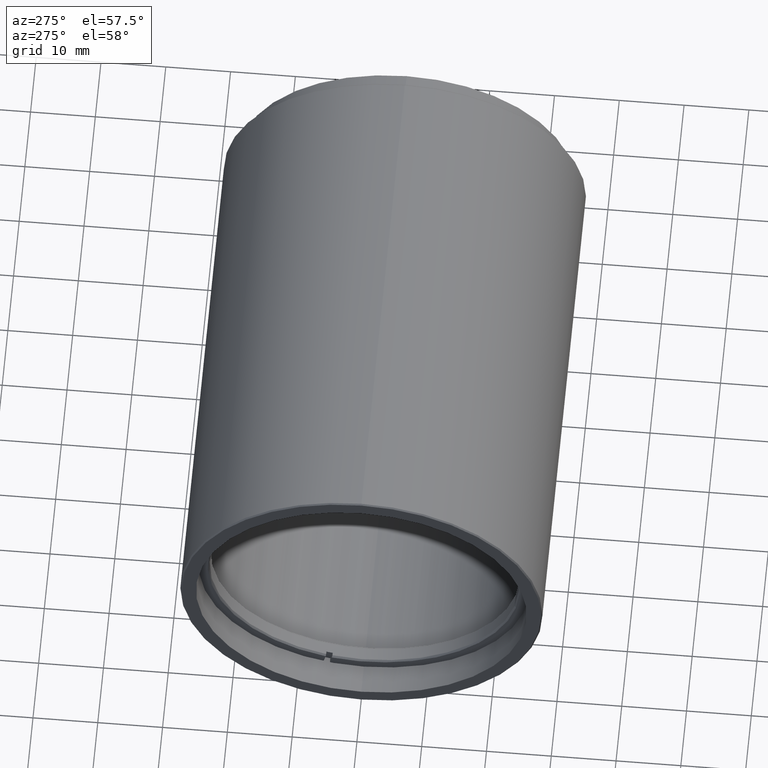
[diagram: clean part render]
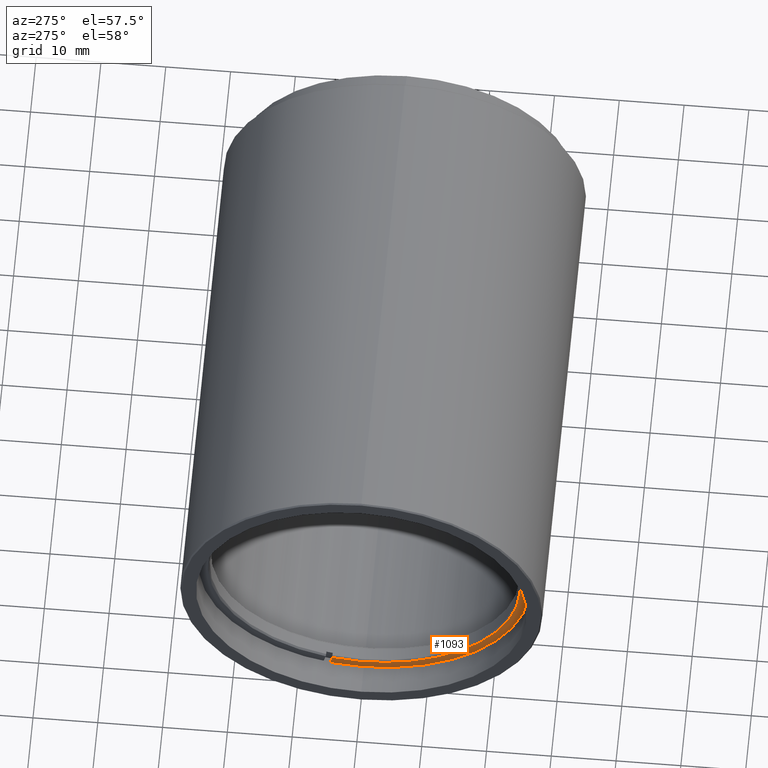
[diagram: same view with one face highlighted and labeled with its STEP entity id]
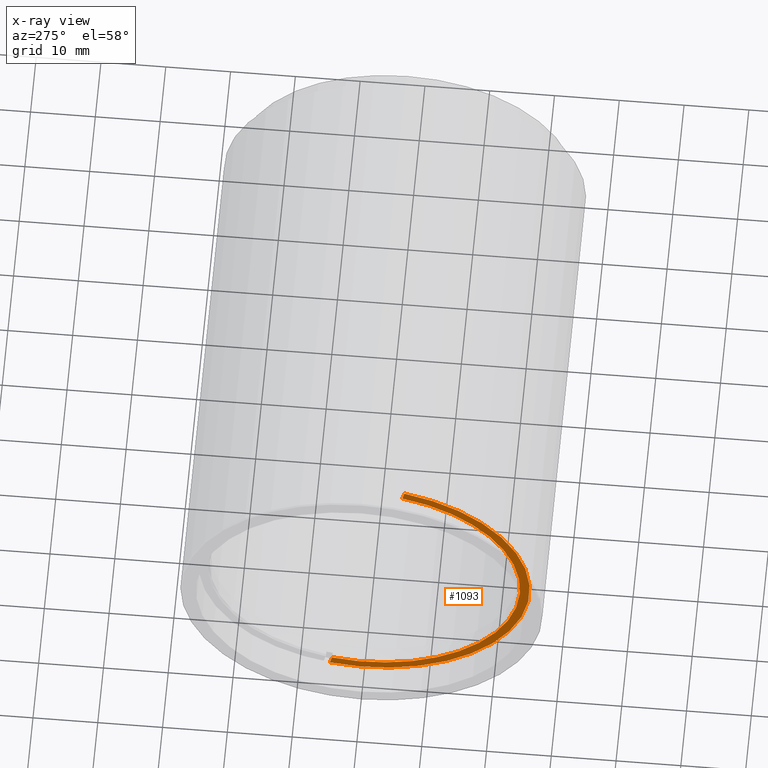
[diagram: x-ray of the same camera — body ghosted, the highlighted face saturated]
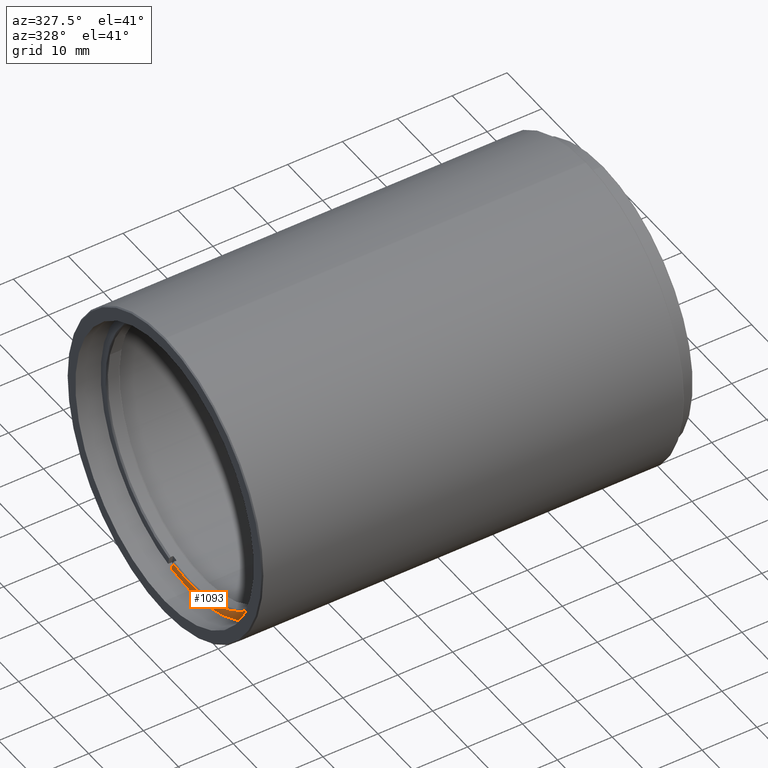
[diagram: same view with one face highlighted and labeled with its STEP entity id]
A machine part, auxiliary view. The second image highlights one B-rep face of the part: STEP entity #1093.
The next image is the same camera in x-ray: the body ghosted, the highlighted face saturated — about 0% of this face is hidden behind the body in this view.
A second angle (auxiliary view) of the same face is appended — the face is thin or edge-on in the first view.
In plain terms, the highlighted planar face has unit normal (-1, -0, 0).
Its self-contained STEP definition (entity closure, byte-faithful):
#13 = VERTEX_POINT ( 'NONE', #673 ) ;
#84 = EDGE_CURVE ( 'NONE', #1122, #1330, #1328, .T. ) ;
#170 = VERTEX_POINT ( 'NONE', #1493 ) ;
#208 = VERTEX_POINT ( 'NONE', #305 ) ;
#262 = LINE ( 'NONE', #956, #1324 ) ;
#305 = CARTESIAN_POINT ( 'NONE',  ( -68.87705874751827650, -26.35385352657912605, 24.82085578231147593 ) ) ;
#310 = DIRECTION ( 'NONE',  ( 0.000000000000000000, -0.9743547821127780395, -0.2250172406149373860 ) ) ;
#322 = CARTESIAN_POINT ( 'NONE',  ( -68.87705874751827650, -20.10857142857142321, 3.848917712323540741E-15 ) ) ;
#400 = VECTOR ( 'NONE', #796, 1000.000000000000114 ) ;
#407 = EDGE_CURVE ( 'NONE', #13, #1330, #262, .T. ) ;
#426 = EDGE_LOOP ( 'NONE', ( #973, #800, #585, #954, #795 ) ) ;
#438 = DIRECTION ( 'NONE',  ( -1.000000000000000000, -0.000000000000000000, 0.000000000000000000 ) ) ;
#488 = DIRECTION ( 'NONE',  ( 1.000000000000000000, -0.000000000000000000, -0.000000000000000000 ) ) ;
#505 = CARTESIAN_POINT ( 'NONE',  ( -68.87705874751827650, -20.10857142857142321, 3.848917712323540741E-15 ) ) ;
#585 = ORIENTED_EDGE ( 'NONE', *, *, #721, .F. ) ;
#635 = DIRECTION ( 'NONE',  ( 0.000000000000000000, -0.9743547821127781505, -0.2250172406149374693 ) ) ;
#637 = CARTESIAN_POINT ( 'NONE',  ( -68.87705874751827650, -20.10857142857142321, 3.848917712323540741E-15 ) ) ;
#641 = AXIS2_PLACEMENT_3D ( 'NONE', #637, #893, #310 ) ;
#673 = CARTESIAN_POINT ( 'NONE',  ( -68.87705874751827650, -14.83764411267659256, -25.04587302292642903 ) ) ;
#721 = EDGE_CURVE ( 'NONE', #170, #208, #1128, .T. ) ;
#753 = DIRECTION ( 'NONE',  ( 1.000000000000000000, -0.000000000000000000, -0.000000000000000000 ) ) ;
#795 = ORIENTED_EDGE ( 'NONE', *, *, #84, .T. ) ;
#796 = DIRECTION ( 'NONE',  ( 0.000000000000000000, -0.2250172406149372750, 0.9743547821127781505 ) ) ;
#800 = ORIENTED_EDGE ( 'NONE', *, *, #1038, .T. ) ;
#824 = CARTESIAN_POINT ( 'NONE',  ( -68.87705874751827650, -43.58516272618776100, -5.421677903996606318 ) ) ;
#884 = CARTESIAN_POINT ( 'NONE',  ( -68.87705874751827650, -15.17523840961645476, -23.58404451263796275 ) ) ;
#893 = DIRECTION ( 'NONE',  ( -1.000000000000000000, 0.000000000000000000, 0.000000000000000000 ) ) ;
#903 = CIRCLE ( 'NONE', #641, 25.59450000000001069 ) ;
#938 = EDGE_CURVE ( 'NONE', #170, #1122, #1102, .T. ) ;
#954 = ORIENTED_EDGE ( 'NONE', *, *, #938, .T. ) ;
#956 = CARTESIAN_POINT ( 'NONE',  ( -68.87705874751827650, -44.22255908419631254, 102.1947435015341767 ) ) ;
#973 = ORIENTED_EDGE ( 'NONE', *, *, #407, .F. ) ;
#1038 = EDGE_CURVE ( 'NONE', #13, #208, #903, .T. ) ;
#1093 = ADVANCED_FACE ( 'NONE', ( #1208 ), #1521, .T. ) ;
#1102 = CIRCLE ( 'NONE', #1120, 24.09450000000000003 ) ;
#1120 = AXIS2_PLACEMENT_3D ( 'NONE', #1569, #488, #1344 ) ;
#1122 = VERTEX_POINT ( 'NONE', #824 ) ;
#1128 = LINE ( 'NONE', #1522, #400 ) ;
#1138 = AXIS2_PLACEMENT_3D ( 'NONE', #322, #438, #1434 ) ;
#1208 = FACE_OUTER_BOUND ( 'NONE', #426, .T. ) ;
#1324 = VECTOR ( 'NONE', #1463, 1000.000000000000114 ) ;
#1328 = CIRCLE ( 'NONE', #1405, 24.09450000000000003 ) ;
#1330 = VERTEX_POINT ( 'NONE', #884 ) ;
#1344 = DIRECTION ( 'NONE',  ( 0.000000000000000000, -0.9743547821127781505, -0.2250172406149374693 ) ) ;
#1405 = AXIS2_PLACEMENT_3D ( 'NONE', #505, #753, #635 ) ;
#1434 = DIRECTION ( 'NONE',  ( 0.000000000000000000, -0.9743547821127781505, -0.2250172406149373860 ) ) ;
#1463 = DIRECTION ( 'NONE',  ( 0.000000000000000000, -0.2250172406149372750, 0.9743547821127781505 ) ) ;
#1493 = CARTESIAN_POINT ( 'NONE',  ( -68.87705874751827650, -26.01625922963926740, 23.35902727202300966 ) ) ;
#1521 = PLANE ( 'NONE',  #1138 ) ;
#1522 = CARTESIAN_POINT ( 'NONE',  ( -68.87705874751827650, -44.22255908419631254, 102.1947435015341767 ) ) ;
#1569 = CARTESIAN_POINT ( 'NONE',  ( -68.87705874751827650, -20.10857142857142321, 3.848917712323540741E-15 ) ) ;